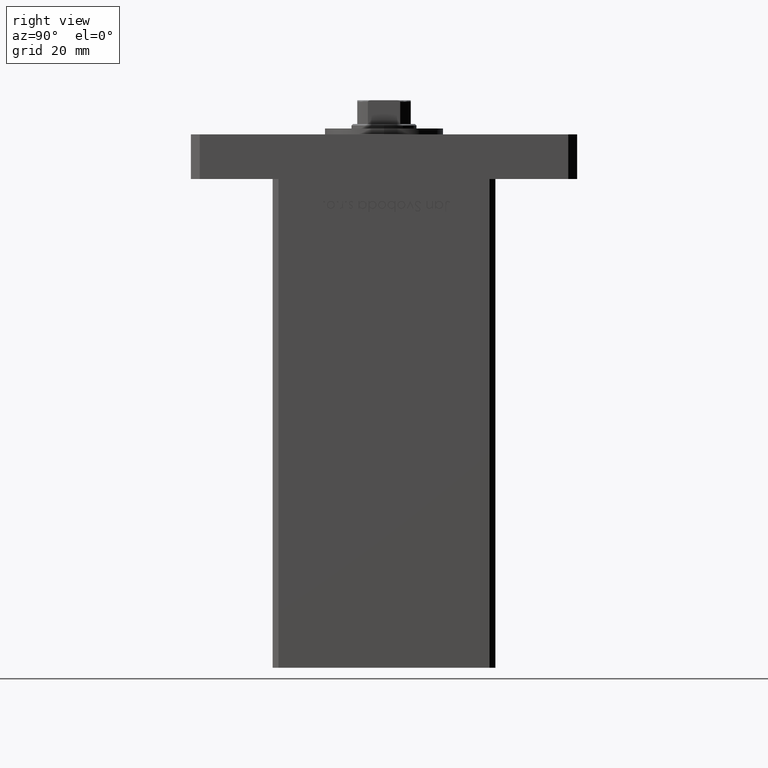
[diagram: clean part render]
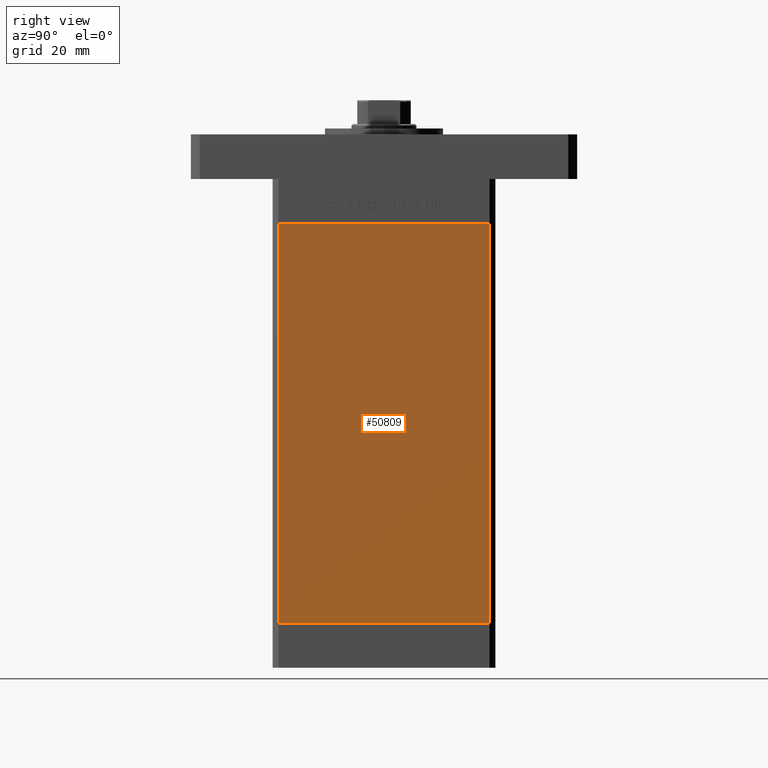
[diagram: same view with one face highlighted and labeled with its STEP entity id]
A machine part, right view. The second image highlights one B-rep face of the part: STEP entity #50809.
In plain terms, the highlighted planar face has unit normal (1, -0, 0).
Its self-contained STEP definition (entity closure, byte-faithful):
#398 = LINE ( 'NONE', #24815, #4564 ) ;
#619 = ORIENTED_EDGE ( 'NONE', *, *, #36940, .F. ) ;
#1766 = ORIENTED_EDGE ( 'NONE', *, *, #21264, .T. ) ;
#1856 = EDGE_CURVE ( 'NONE', #40295, #49878, #398, .T. ) ;
#1980 = CARTESIAN_POINT ( 'NONE',  ( 42.49999999999998579, -35.50000000000000711, 134.5000000000000000 ) ) ;
#4564 = VECTOR ( 'NONE', #16955, 1000.000000000000000 ) ;
#5207 = CARTESIAN_POINT ( 'NONE',  ( 42.50000000000000711, 35.50000000000001421, 134.5000000000000000 ) ) ;
#13888 = DIRECTION ( 'NONE',  ( -0.000000000000000000, -0.000000000000000000, -1.000000000000000000 ) ) ;
#16955 = DIRECTION ( 'NONE',  ( -2.931927001650941360E-16, -1.000000000000000000, 0.000000000000000000 ) ) ;
#17450 = LINE ( 'NONE', #1980, #30813 ) ;
#18291 = EDGE_LOOP ( 'NONE', ( #37334, #619, #1766, #18822 ) ) ;
#18822 = ORIENTED_EDGE ( 'NONE', *, *, #43268, .T. ) ;
#20591 = CARTESIAN_POINT ( 'NONE',  ( 42.50000000000000711, 35.50000000000001421, 134.5000000000000000 ) ) ;
#21264 = EDGE_CURVE ( 'NONE', #37089, #49091, #46090, .T. ) ;
#23637 = AXIS2_PLACEMENT_3D ( 'NONE', #51767, #34412, #39014 ) ;
#24815 = CARTESIAN_POINT ( 'NONE',  ( 42.50000000000000711, 35.50000000000001421, 0.000000000000000000 ) ) ;
#26273 = FACE_OUTER_BOUND ( 'NONE', #18291, .T. ) ;
#29289 = CARTESIAN_POINT ( 'NONE',  ( 42.50000000000000711, 35.50000000000001421, 134.5000000000000000 ) ) ;
#29490 = CARTESIAN_POINT ( 'NONE',  ( 42.50000000000000711, 35.50000000000001421, 0.000000000000000000 ) ) ;
#30813 = VECTOR ( 'NONE', #38603, 1000.000000000000000 ) ;
#31066 = CARTESIAN_POINT ( 'NONE',  ( 42.49999999999998579, -35.50000000000000711, 134.5000000000000000 ) ) ;
#33810 = CARTESIAN_POINT ( 'NONE',  ( 42.49999999999998579, -35.50000000000000711, 0.000000000000000000 ) ) ;
#34412 = DIRECTION ( 'NONE',  ( 1.000000000000000000, -2.931927001650941853E-16, 0.000000000000000000 ) ) ;
#36940 = EDGE_CURVE ( 'NONE', #37089, #40295, #38027, .T. ) ;
#37089 = VERTEX_POINT ( 'NONE', #29289 ) ;
#37334 = ORIENTED_EDGE ( 'NONE', *, *, #1856, .F. ) ;
#38027 = LINE ( 'NONE', #5207, #47164 ) ;
#38603 = DIRECTION ( 'NONE',  ( -0.000000000000000000, -0.000000000000000000, -1.000000000000000000 ) ) ;
#38753 = PLANE ( 'NONE',  #23637 ) ;
#39014 = DIRECTION ( 'NONE',  ( 2.931927001650941853E-16, 1.000000000000000000, 0.000000000000000000 ) ) ;
#40295 = VERTEX_POINT ( 'NONE', #29490 ) ;
#43268 = EDGE_CURVE ( 'NONE', #49091, #49878, #17450, .T. ) ;
#46090 = LINE ( 'NONE', #20591, #52877 ) ;
#47164 = VECTOR ( 'NONE', #13888, 1000.000000000000000 ) ;
#49091 = VERTEX_POINT ( 'NONE', #31066 ) ;
#49344 = DIRECTION ( 'NONE',  ( -2.931927001650941360E-16, -1.000000000000000000, 0.000000000000000000 ) ) ;
#49878 = VERTEX_POINT ( 'NONE', #33810 ) ;
#50809 = ADVANCED_FACE ( 'NONE', ( #26273 ), #38753, .T. ) ;
#51767 = CARTESIAN_POINT ( 'NONE',  ( 42.50000000000000711, 35.50000000000001421, 134.5000000000000000 ) ) ;
#52877 = VECTOR ( 'NONE', #49344, 1000.000000000000000 ) ;